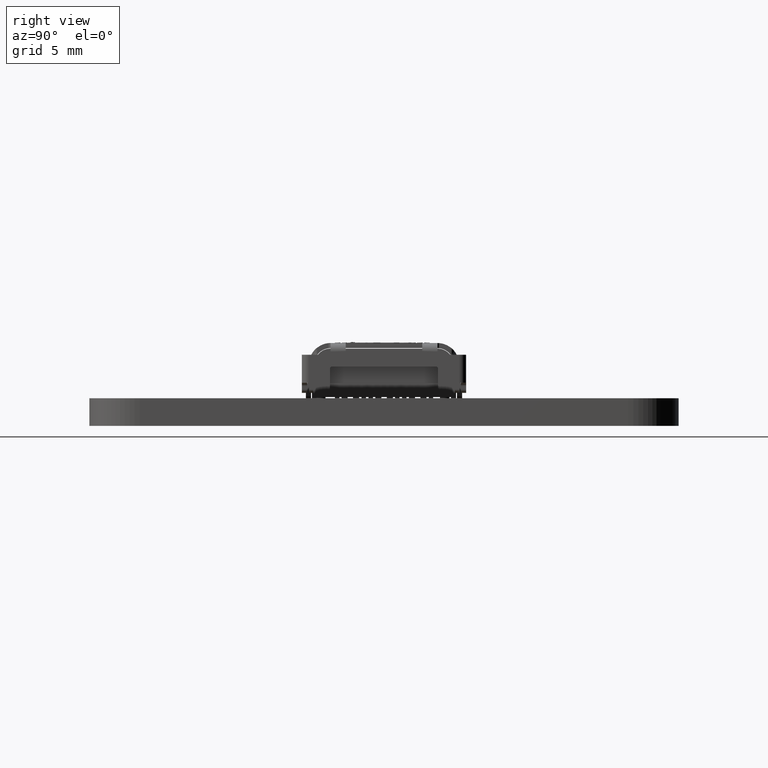
[diagram: clean part render]
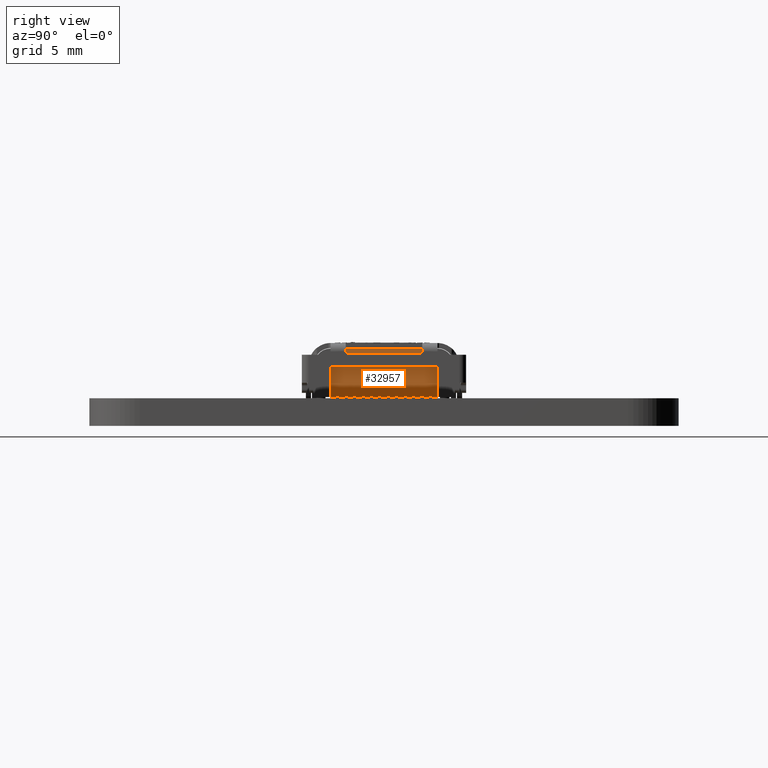
[diagram: same view with one face highlighted and labeled with its STEP entity id]
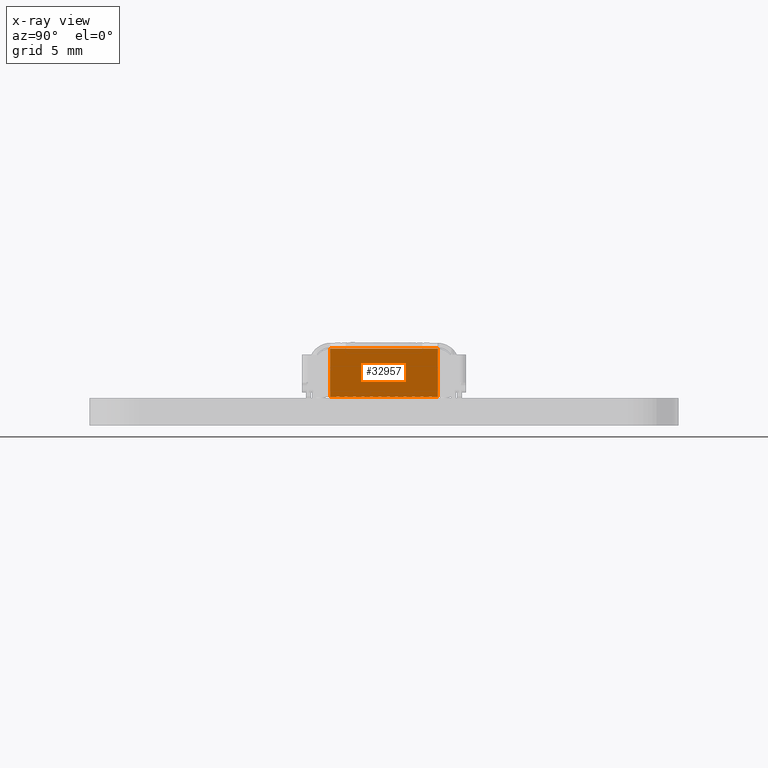
[diagram: x-ray of the same camera — body ghosted, the highlighted face saturated]
A machine part, right view. The second image highlights one B-rep face of the part: STEP entity #32957.
The next image is the same camera in x-ray: the body ghosted, the highlighted face saturated — about 0% of this face is hidden behind the body in this view.
In plain terms, the highlighted planar face has unit normal (-1, 0, -0).
Its self-contained STEP definition (entity closure, byte-faithful):
#32404 = VERTEX_POINT('',#32405);
#32405 = CARTESIAN_POINT('',(2.840011485747,-1.630004854007,
    -2.17000000009));
#32420 = VERTEX_POINT('',#32421);
#32421 = CARTESIAN_POINT('',(2.660011507519,-1.630004854009,
    -2.170000000102));
#32427 = EDGE_CURVE('',#32428,#32420,#32430,.T.);
#32428 = VERTEX_POINT('',#32429);
#32429 = CARTESIAN_POINT('',(2.340011404003,-1.630004854009,
    -2.170000000102));
#32430 = LINE('',#32431,#32432);
#32431 = CARTESIAN_POINT('',(2.340011404003,-1.630004854009,
    -2.170000000102));
#32432 = VECTOR('',#32433,1.);
#32433 = DIRECTION('',(1.,0.E+000,0.E+000));
#32452 = VERTEX_POINT('',#32453);
#32453 = CARTESIAN_POINT('',(2.160011425776,-1.630004854009,
    -2.170000000102));
#32459 = EDGE_CURVE('',#32460,#32452,#32462,.T.);
#32460 = VERTEX_POINT('',#32461);
#32461 = CARTESIAN_POINT('',(1.840011439204,-1.630004854009,
    -2.170000000102));
#32462 = LINE('',#32463,#32464);
#32463 = CARTESIAN_POINT('',(1.840011439204,-1.630004854009,
    -2.170000000102));
#32464 = VECTOR('',#32465,1.);
#32465 = DIRECTION('',(1.,0.E+000,0.E+000));
#32484 = VERTEX_POINT('',#32485);
#32485 = CARTESIAN_POINT('',(1.660011344033,-1.630004854009,
    -2.170000000102));
#32491 = EDGE_CURVE('',#32492,#32484,#32494,.T.);
#32492 = VERTEX_POINT('',#32493);
#32493 = CARTESIAN_POINT('',(1.340011356079,-1.630004854009,
    -2.170000000102));
#32494 = LINE('',#32495,#32496);
#32495 = CARTESIAN_POINT('',(1.340011356079,-1.630004854009,
    -2.170000000102));
#32496 = VECTOR('',#32497,1.);
#32497 = DIRECTION('',(1.,0.E+000,0.E+000));
#32516 = VERTEX_POINT('',#32517);
#32517 = CARTESIAN_POINT('',(1.160011377852,-1.630004854009,
    -2.170000000102));
#32523 = EDGE_CURVE('',#32524,#32516,#32526,.T.);
#32524 = VERTEX_POINT('',#32525);
#32525 = CARTESIAN_POINT('',(0.84001139088,-1.630004854009,
    -2.170000000102));
#32526 = LINE('',#32527,#32528);
#32527 = CARTESIAN_POINT('',(0.84001139088,-1.630004854009,
    -2.170000000102));
#32528 = VECTOR('',#32529,1.);
#32529 = DIRECTION('',(1.,0.E+000,0.E+000));
#32548 = VERTEX_POINT('',#32549);
#32549 = CARTESIAN_POINT('',(0.660011412652,-1.630004854009,
    -2.170000000102));
#32555 = EDGE_CURVE('',#32556,#32548,#32558,.T.);
#32556 = VERTEX_POINT('',#32557);
#32557 = CARTESIAN_POINT('',(0.340011395886,-1.630004854009,
    -2.170000000102));
#32558 = LINE('',#32559,#32560);
#32559 = CARTESIAN_POINT('',(0.340011395886,-1.630004854009,
    -2.170000000102));
#32560 = VECTOR('',#32561,1.);
#32561 = DIRECTION('',(1.,0.E+000,0.E+000));
#32580 = VERTEX_POINT('',#32581);
#32581 = CARTESIAN_POINT('',(0.160011388847,-1.630004854009,
    -2.170000000102));
#32587 = EDGE_CURVE('',#32588,#32580,#32590,.T.);
#32588 = VERTEX_POINT('',#32589);
#32589 = CARTESIAN_POINT('',(-0.15998859844,-1.630004854009,
    -2.170000000102));
#32590 = LINE('',#32591,#32592);
#32591 = CARTESIAN_POINT('',(-0.15998859844,-1.630004854009,
    -2.170000000102));
#32592 = VECTOR('',#32593,1.);
#32593 = DIRECTION('',(1.,0.E+000,0.E+000));
#32612 = VERTEX_POINT('',#32613);
#32613 = CARTESIAN_POINT('',(-0.339988605479,-1.630004854009,
    -2.170000000102));
#32619 = EDGE_CURVE('',#32620,#32612,#32622,.T.);
#32620 = VERTEX_POINT('',#32621);
#32621 = CARTESIAN_POINT('',(-0.659988622245,-1.630004854009,
    -2.170000000102));
#32622 = LINE('',#32623,#32624);
#32623 = CARTESIAN_POINT('',(-0.659988622245,-1.630004854009,
    -2.170000000102));
#32624 = VECTOR('',#32625,1.);
#32625 = DIRECTION('',(1.,0.E+000,0.E+000));
#32644 = VERTEX_POINT('',#32645);
#32645 = CARTESIAN_POINT('',(-0.839988600472,-1.630004854009,
    -2.170000000102));
#32651 = EDGE_CURVE('',#32652,#32644,#32654,.T.);
#32652 = VERTEX_POINT('',#32653);
#32653 = CARTESIAN_POINT('',(-1.159988588111,-1.630004854009,
    -2.170000000102));
#32654 = LINE('',#32655,#32656);
#32655 = CARTESIAN_POINT('',(-1.159988588111,-1.630004854009,
    -2.170000000102));
#32656 = VECTOR('',#32657,1.);
#32657 = DIRECTION('',(1.,0.E+000,0.E+000));
#32676 = VERTEX_POINT('',#32677);
#32677 = CARTESIAN_POINT('',(-1.339988566338,-1.630004854009,
    -2.170000000102));
#32683 = EDGE_CURVE('',#32684,#32676,#32686,.T.);
#32684 = VERTEX_POINT('',#32685);
#32685 = CARTESIAN_POINT('',(-1.659988552244,-1.630004854009,
    -2.170000000102));
#32686 = LINE('',#32687,#32688);
#32687 = CARTESIAN_POINT('',(-1.659988552244,-1.630004854009,
    -2.170000000102));
#32688 = VECTOR('',#32689,1.);
#32689 = DIRECTION('',(1.,0.E+000,0.E+000));
#32708 = VERTEX_POINT('',#32709);
#32709 = CARTESIAN_POINT('',(-1.839988647015,-1.630004854009,
    -2.170000000102));
#32715 = EDGE_CURVE('',#32716,#32708,#32718,.T.);
#32716 = VERTEX_POINT('',#32717);
#32717 = CARTESIAN_POINT('',(-2.159988635369,-1.630004854009,
    -2.170000000102));
#32718 = LINE('',#32719,#32720);
#32719 = CARTESIAN_POINT('',(-2.159988635369,-1.630004854009,
    -2.170000000102));
#32720 = VECTOR('',#32721,1.);
#32721 = DIRECTION('',(1.,0.E+000,0.E+000));
#32740 = VERTEX_POINT('',#32741);
#32741 = CARTESIAN_POINT('',(-2.339988613596,-1.630004854009,
    -2.170000000102));
#32747 = EDGE_CURVE('',#32748,#32740,#32750,.T.);
#32748 = VERTEX_POINT('',#32749);
#32749 = CARTESIAN_POINT('',(-2.659988717112,-1.630004854009,
    -2.170000000102));
#32750 = LINE('',#32751,#32752);
#32751 = CARTESIAN_POINT('',(-2.659988717112,-1.630004854009,
    -2.170000000102));
#32752 = VECTOR('',#32753,1.);
#32753 = DIRECTION('',(1.,0.E+000,0.E+000));
#32772 = VERTEX_POINT('',#32773);
#32773 = CARTESIAN_POINT('',(-2.839988695339,-1.630004854006,
    -2.170000000091));
#32779 = EDGE_CURVE('',#32780,#32772,#32782,.T.);
#32780 = VERTEX_POINT('',#32781);
#32781 = CARTESIAN_POINT('',(-3.200003573524,-1.630004854002,
    -2.170000000108));
#32782 = LINE('',#32783,#32784);
#32783 = CARTESIAN_POINT('',(-3.200003573524,-1.630004854002,
    -2.170000000108));
#32784 = VECTOR('',#32785,1.);
#32785 = DIRECTION('',(1.,-1.203555375921E-011,4.814714915747E-011));
#32868 = VERTEX_POINT('',#32869);
#32869 = CARTESIAN_POINT('',(3.200000435779,-1.630004854002,
    -2.170000000108));
#32875 = EDGE_CURVE('',#32404,#32868,#32876,.T.);
#32876 = LINE('',#32877,#32878);
#32877 = CARTESIAN_POINT('',(2.840011485747,-1.630004854007,
    -2.17000000009));
#32878 = VECTOR('',#32879,1.);
#32879 = DIRECTION('',(1.,1.203888785626E-011,-4.876742645081E-011));
#32914 = EDGE_CURVE('',#32404,#32915,#32917,.T.);
#32915 = VERTEX_POINT('',#32916);
#32916 = CARTESIAN_POINT('',(2.840011485892,-1.610004853818,
    -2.170000000064));
#32917 = LINE('',#32918,#32919);
#32918 = CARTESIAN_POINT('',(2.840011485747,-1.630004854007,
    -2.17000000009));
#32919 = VECTOR('',#32920,1.);
#32920 = DIRECTION('',(7.277289813183E-009,1.,1.328492858738E-009));
#32957 = ADVANCED_FACE('',(#32958),#33270,.F.);
#32958 = FACE_BOUND('',#32959,.F.);
#32959 = EDGE_LOOP('',(#32960,#32961,#32962,#32970,#32979,#32987,#32996,
    #33002,#33003,#33011,#33019,#33025,#33026,#33034,#33042,#33048,
    #33049,#33057,#33065,#33071,#33072,#33080,#33088,#33094,#33095,
    #33103,#33111,#33117,#33118,#33126,#33134,#33140,#33141,#33149,
    #33157,#33163,#33164,#33172,#33180,#33186,#33187,#33195,#33203,
    #33209,#33210,#33218,#33226,#33232,#33233,#33241,#33249,#33255,
    #33256,#33264));
#32960 = ORIENTED_EDGE('',*,*,#32914,.F.);
#32961 = ORIENTED_EDGE('',*,*,#32875,.T.);
#32962 = ORIENTED_EDGE('',*,*,#32963,.F.);
#32963 = EDGE_CURVE('',#32964,#32868,#32966,.T.);
#32964 = VERTEX_POINT('',#32965);
#32965 = CARTESIAN_POINT('',(3.200000418039,1.249673387369,
    -2.170000000299));
#32966 = LINE('',#32967,#32968);
#32967 = CARTESIAN_POINT('',(3.200000418039,1.249673387369,
    -2.170000000299));
#32968 = VECTOR('',#32969,1.);
#32969 = DIRECTION('',(6.160211121278E-009,-1.,6.636050976931E-011));
#32970 = ORIENTED_EDGE('',*,*,#32971,.T.);
#32971 = EDGE_CURVE('',#32964,#32972,#32974,.T.);
#32972 = VERTEX_POINT('',#32973);
#32973 = CARTESIAN_POINT('',(3.175232796425,1.249995138076,
    -2.17000000072));
#32974 = CIRCLE('',#32975,0.970000065);
#32975 = AXIS2_PLACEMENT_3D('',#32976,#32977,#32978);
#32976 = CARTESIAN_POINT('',(3.175000046,0.279995101,-2.17000000072));
#32977 = DIRECTION('',(0.E+000,0.E+000,1.));
#32978 = DIRECTION('',(2.577359004155E-002,0.999667805852,-0.E+000));
#32979 = ORIENTED_EDGE('',*,*,#32980,.F.);
#32980 = EDGE_CURVE('',#32981,#32972,#32983,.T.);
#32981 = VERTEX_POINT('',#32982);
#32982 = CARTESIAN_POINT('',(-3.175242538277,1.249997665936,
    -2.17000000032));
#32983 = LINE('',#32984,#32985);
#32984 = CARTESIAN_POINT('',(-3.175242538277,1.249997665936,
    -2.17000000032));
#32985 = VECTOR('',#32986,1.);
#32986 = DIRECTION('',(1.,-3.8146788824E-007,0.E+000));
#32987 = ORIENTED_EDGE('',*,*,#32988,.T.);
#32988 = EDGE_CURVE('',#32981,#32989,#32991,.T.);
#32989 = VERTEX_POINT('',#32990);
#32990 = CARTESIAN_POINT('',(-3.200009978557,1.249679023928,
    -2.17000000072));
#32991 = CIRCLE('',#32992,0.97);
#32992 = AXIS2_PLACEMENT_3D('',#32993,#32994,#32995);
#32993 = CARTESIAN_POINT('',(-3.175058214,0.28,-2.17000000072));
#32994 = DIRECTION('',(0.E+000,0.E+000,1.));
#32995 = DIRECTION('',(-1.899500525041E-004,0.999999981959,0.E+000));
#32996 = ORIENTED_EDGE('',*,*,#32997,.T.);
#32997 = EDGE_CURVE('',#32989,#32780,#32998,.T.);
#32998 = LINE('',#32999,#33000);
#32999 = CARTESIAN_POINT('',(-3.200010002919,1.249677978284,
    -2.170000000299));
#33000 = VECTOR('',#33001,1.);
#33001 = DIRECTION('',(2.232674922469E-006,-0.999999999998,
    6.62931663976E-011));
#33002 = ORIENTED_EDGE('',*,*,#32779,.T.);
#33003 = ORIENTED_EDGE('',*,*,#33004,.F.);
#33004 = EDGE_CURVE('',#33005,#32772,#33007,.T.);
#33005 = VERTEX_POINT('',#33006);
#33006 = CARTESIAN_POINT('',(-2.839988695245,-1.610004853818,
    -2.170000000064));
#33007 = LINE('',#33008,#33009);
#33008 = CARTESIAN_POINT('',(-2.839988695245,-1.610004853818,
    -2.170000000064));
#33009 = VECTOR('',#33010,1.);
#33010 = DIRECTION('',(-4.722289181841E-009,-1.,-1.338151798976E-009));
#33011 = ORIENTED_EDGE('',*,*,#33012,.T.);
#33012 = EDGE_CURVE('',#33005,#33013,#33015,.T.);
#33013 = VERTEX_POINT('',#33014);
#33014 = CARTESIAN_POINT('',(-2.659988717146,-1.610004853818,
    -2.170000000064));
#33015 = LINE('',#33016,#33017);
#33016 = CARTESIAN_POINT('',(-2.839988695245,-1.610004853818,
    -2.170000000064));
#33017 = VECTOR('',#33018,1.);
#33018 = DIRECTION('',(1.,6.513309203635E-013,0.E+000));
#33019 = ORIENTED_EDGE('',*,*,#33020,.T.);
#33020 = EDGE_CURVE('',#33013,#32748,#33021,.T.);
#33021 = LINE('',#33022,#33023);
#33022 = CARTESIAN_POINT('',(-2.659988717146,-1.610004853818,
    -2.170000000064));
#33023 = VECTOR('',#33024,1.);
#33024 = DIRECTION('',(1.716649028765E-009,-1.,-1.900013461764E-009));
#33025 = ORIENTED_EDGE('',*,*,#32747,.T.);
#33026 = ORIENTED_EDGE('',*,*,#33027,.F.);
#33027 = EDGE_CURVE('',#33028,#32740,#33030,.T.);
#33028 = VERTEX_POINT('',#33029);
#33029 = CARTESIAN_POINT('',(-2.339988613208,-1.610004853818,
    -2.170000000064));
#33030 = LINE('',#33031,#33032);
#33031 = CARTESIAN_POINT('',(-2.339988613208,-1.610004853818,
    -2.170000000064));
#33032 = VECTOR('',#33033,1.);
#33033 = DIRECTION('',(-1.94264824596E-008,-1.,-1.899991257315E-009));
#33034 = ORIENTED_EDGE('',*,*,#33035,.T.);
#33035 = EDGE_CURVE('',#33028,#33036,#33038,.T.);
#33036 = VERTEX_POINT('',#33037);
#33037 = CARTESIAN_POINT('',(-2.159988635109,-1.610004853818,
    -2.170000000064));
#33038 = LINE('',#33039,#33040);
#33039 = CARTESIAN_POINT('',(-2.339988613208,-1.610004853818,
    -2.170000000064));
#33040 = VECTOR('',#33041,1.);
#33041 = DIRECTION('',(1.,6.513309203626E-013,0.E+000));
#33042 = ORIENTED_EDGE('',*,*,#33043,.T.);
#33043 = EDGE_CURVE('',#33036,#32716,#33044,.T.);
#33044 = LINE('',#33045,#33046);
#33045 = CARTESIAN_POINT('',(-2.159988635109,-1.610004853818,
    -2.170000000064));
#33046 = VECTOR('',#33047,1.);
#33047 = DIRECTION('',(-1.300000095165E-008,-1.,-1.900013461764E-009));
#33048 = ORIENTED_EDGE('',*,*,#32715,.T.);
#33049 = ORIENTED_EDGE('',*,*,#33050,.F.);
#33050 = EDGE_CURVE('',#33051,#32708,#33053,.T.);
#33051 = VERTEX_POINT('',#33052);
#33052 = CARTESIAN_POINT('',(-1.839988647358,-1.610004853818,
    -2.170000000064));
#33053 = LINE('',#33054,#33055);
#33054 = CARTESIAN_POINT('',(-1.839988647358,-1.610004853818,
    -2.170000000064));
#33055 = VECTOR('',#33056,1.);
#33056 = DIRECTION('',(1.713598135933E-008,-1.,-1.899991257315E-009));
#33057 = ORIENTED_EDGE('',*,*,#33058,.T.);
#33058 = EDGE_CURVE('',#33051,#33059,#33061,.T.);
#33059 = VERTEX_POINT('',#33060);
#33060 = CARTESIAN_POINT('',(-1.659988552611,-1.610004853818,
    -2.170000000064));
#33061 = LINE('',#33062,#33063);
#33062 = CARTESIAN_POINT('',(-1.839988647358,-1.610004853818,
    -2.170000000064));
#33063 = VECTOR('',#33064,1.);
#33064 = DIRECTION('',(1.,6.513304982722E-013,0.E+000));
#33065 = ORIENTED_EDGE('',*,*,#33066,.T.);
#33066 = EDGE_CURVE('',#33059,#32684,#33067,.T.);
#33067 = LINE('',#33068,#33069);
#33068 = CARTESIAN_POINT('',(-1.659988552611,-1.610004853818,
    -2.170000000064));
#33069 = VECTOR('',#33070,1.);
#33070 = DIRECTION('',(1.834998802062E-008,-1.,-1.900013461764E-009));
#33071 = ORIENTED_EDGE('',*,*,#32683,.T.);
#33072 = ORIENTED_EDGE('',*,*,#33073,.F.);
#33073 = EDGE_CURVE('',#33074,#32676,#33076,.T.);
#33074 = VERTEX_POINT('',#33075);
#33075 = CARTESIAN_POINT('',(-1.339988566387,-1.610004853818,
    -2.170000000064));
#33076 = LINE('',#33077,#33078);
#33077 = CARTESIAN_POINT('',(-1.339988566387,-1.610004853818,
    -2.170000000064));
#33078 = VECTOR('',#33079,1.);
#33079 = DIRECTION('',(2.426259170432E-009,-1.,-1.899991257315E-009));
#33080 = ORIENTED_EDGE('',*,*,#33081,.T.);
#33081 = EDGE_CURVE('',#33074,#33082,#33084,.T.);
#33082 = VERTEX_POINT('',#33083);
#33083 = CARTESIAN_POINT('',(-1.159988588288,-1.610004853818,
    -2.170000000064));
#33084 = LINE('',#33085,#33086);
#33085 = CARTESIAN_POINT('',(-1.339988566387,-1.610004853818,
    -2.170000000064));
#33086 = VECTOR('',#33087,1.);
#33087 = DIRECTION('',(1.,6.513309203636E-013,0.E+000));
#33088 = ORIENTED_EDGE('',*,*,#33089,.T.);
#33089 = EDGE_CURVE('',#33082,#32652,#33090,.T.);
#33090 = LINE('',#33091,#33092);
#33091 = CARTESIAN_POINT('',(-1.159988588288,-1.610004853818,
    -2.170000000064));
#33092 = VECTOR('',#33093,1.);
#33093 = DIRECTION('',(8.866651772621E-009,-1.,-1.900013461764E-009));
#33094 = ORIENTED_EDGE('',*,*,#32651,.T.);
#33095 = ORIENTED_EDGE('',*,*,#33096,.F.);
#33096 = EDGE_CURVE('',#33097,#32644,#33099,.T.);
#33097 = VERTEX_POINT('',#33098);
#33098 = CARTESIAN_POINT('',(-0.83998860022,-1.610004853818,
    -2.170000000064));
#33099 = LINE('',#33100,#33101);
#33100 = CARTESIAN_POINT('',(-0.83998860022,-1.610004853818,
    -2.170000000064));
#33101 = VECTOR('',#33102,1.);
#33102 = DIRECTION('',(-1.26185283241E-008,-1.,-1.899991257315E-009));
#33103 = ORIENTED_EDGE('',*,*,#33104,.T.);
#33104 = EDGE_CURVE('',#33097,#33105,#33107,.T.);
#33105 = VERTEX_POINT('',#33106);
#33106 = CARTESIAN_POINT('',(-0.659988622121,-1.610004853818,
    -2.170000000064));
#33107 = LINE('',#33108,#33109);
#33108 = CARTESIAN_POINT('',(-0.83998860022,-1.610004853818,
    -2.170000000064));
#33109 = VECTOR('',#33110,1.);
#33110 = DIRECTION('',(1.,6.513309203633E-013,0.E+000));
#33111 = ORIENTED_EDGE('',*,*,#33112,.T.);
#33112 = EDGE_CURVE('',#33105,#32620,#33113,.T.);
#33113 = LINE('',#33114,#33115);
#33114 = CARTESIAN_POINT('',(-0.659988622121,-1.610004853818,
    -2.170000000064));
#33115 = VECTOR('',#33116,1.);
#33116 = DIRECTION('',(-6.183331565533E-009,-1.,-1.900013461764E-009));
#33117 = ORIENTED_EDGE('',*,*,#32619,.T.);
#33118 = ORIENTED_EDGE('',*,*,#33119,.F.);
#33119 = EDGE_CURVE('',#33120,#32612,#33122,.T.);
#33120 = VERTEX_POINT('',#33121);
#33121 = CARTESIAN_POINT('',(-0.339988605388,-1.610004853818,
    -2.170000000064));
#33122 = LINE('',#33123,#33124);
#33123 = CARTESIAN_POINT('',(-0.339988605388,-1.610004853818,
    -2.170000000064));
#33124 = VECTOR('',#33125,1.);
#33125 = DIRECTION('',(-4.552183586662E-009,-1.,-1.899991257315E-009));
#33126 = ORIENTED_EDGE('',*,*,#33127,.T.);
#33127 = EDGE_CURVE('',#33120,#33128,#33130,.T.);
#33128 = VERTEX_POINT('',#33129);
#33129 = CARTESIAN_POINT('',(-0.159988598019,-1.610004853818,
    -2.170000000064));
#33130 = LINE('',#33131,#33132);
#33131 = CARTESIAN_POINT('',(-0.339988605388,-1.610004853818,
    -2.170000000064));
#33132 = VECTOR('',#33133,1.);
#33133 = DIRECTION('',(1.,6.513308144477E-013,0.E+000));
#33134 = ORIENTED_EDGE('',*,*,#33135,.T.);
#33135 = EDGE_CURVE('',#33128,#32588,#33136,.T.);
#33136 = LINE('',#33137,#33138);
#33137 = CARTESIAN_POINT('',(-0.159988598019,-1.610004853818,
    -2.170000000064));
#33138 = VECTOR('',#33139,1.);
#33139 = DIRECTION('',(-2.106166609904E-008,-1.,-1.900013461764E-009));
#33140 = ORIENTED_EDGE('',*,*,#32587,.T.);
#33141 = ORIENTED_EDGE('',*,*,#33142,.F.);
#33142 = EDGE_CURVE('',#33143,#32580,#33145,.T.);
#33143 = VERTEX_POINT('',#33144);
#33144 = CARTESIAN_POINT('',(0.160011388666,-1.610004853818,
    -2.170000000064));
#33145 = LINE('',#33146,#33147);
#33146 = CARTESIAN_POINT('',(0.160011388666,-1.610004853818,
    -2.170000000064));
#33147 = VECTOR('',#33148,1.);
#33148 = DIRECTION('',(9.069715725278E-009,-1.,-1.899991257315E-009));
#33149 = ORIENTED_EDGE('',*,*,#33150,.T.);
#33150 = EDGE_CURVE('',#33143,#33151,#33153,.T.);
#33151 = VERTEX_POINT('',#33152);
#33152 = CARTESIAN_POINT('',(0.340011396035,-1.610004853818,
    -2.170000000064));
#33153 = LINE('',#33154,#33155);
#33154 = CARTESIAN_POINT('',(0.160011388666,-1.610004853818,
    -2.170000000064));
#33155 = VECTOR('',#33156,1.);
#33156 = DIRECTION('',(1.,6.513308144477E-013,0.E+000));
#33157 = ORIENTED_EDGE('',*,*,#33158,.T.);
#33158 = EDGE_CURVE('',#33151,#32556,#33159,.T.);
#33159 = LINE('',#33160,#33161);
#33160 = CARTESIAN_POINT('',(0.340011396035,-1.610004853818,
    -2.170000000064));
#33161 = VECTOR('',#33162,1.);
#33162 = DIRECTION('',(-7.438335987273E-009,-1.,-1.900013461764E-009));
#33163 = ORIENTED_EDGE('',*,*,#32555,.T.);
#33164 = ORIENTED_EDGE('',*,*,#33165,.F.);
#33165 = EDGE_CURVE('',#33166,#32548,#33168,.T.);
#33166 = VERTEX_POINT('',#33167);
#33167 = CARTESIAN_POINT('',(0.660011412768,-1.610004853818,
    -2.170000000064));
#33168 = LINE('',#33169,#33170);
#33169 = CARTESIAN_POINT('',(0.660011412768,-1.610004853818,
    -2.170000000064));
#33170 = VECTOR('',#33171,1.);
#33171 = DIRECTION('',(-5.808931058543E-009,-1.,-1.899991257315E-009));
#33172 = ORIENTED_EDGE('',*,*,#33173,.T.);
#33173 = EDGE_CURVE('',#33166,#33174,#33176,.T.);
#33174 = VERTEX_POINT('',#33175);
#33175 = CARTESIAN_POINT('',(0.840011390867,-1.610004853818,
    -2.170000000064));
#33176 = LINE('',#33177,#33178);
#33177 = CARTESIAN_POINT('',(0.660011412768,-1.610004853818,
    -2.170000000064));
#33178 = VECTOR('',#33179,1.);
#33179 = DIRECTION('',(1.,6.513309203633E-013,0.E+000));
#33180 = ORIENTED_EDGE('',*,*,#33181,.T.);
#33181 = EDGE_CURVE('',#33174,#32524,#33182,.T.);
#33182 = LINE('',#33183,#33184);
#33183 = CARTESIAN_POINT('',(0.840011390867,-1.610004853818,
    -2.170000000064));
#33184 = VECTOR('',#33185,1.);
#33185 = DIRECTION('',(6.266709313887E-010,-1.,-1.900013461764E-009));
#33186 = ORIENTED_EDGE('',*,*,#32523,.T.);
#33187 = ORIENTED_EDGE('',*,*,#33188,.F.);
#33188 = EDGE_CURVE('',#33189,#32516,#33191,.T.);
#33189 = VERTEX_POINT('',#33190);
#33190 = CARTESIAN_POINT('',(1.160011378157,-1.610004853818,
    -2.170000000064));
#33191 = LINE('',#33192,#33193);
#33192 = CARTESIAN_POINT('',(1.160011378157,-1.610004853818,
    -2.170000000064));
#33193 = VECTOR('',#33194,1.);
#33194 = DIRECTION('',(-1.529482081953E-008,-1.,-1.899991257315E-009));
#33195 = ORIENTED_EDGE('',*,*,#33196,.T.);
#33196 = EDGE_CURVE('',#33189,#33197,#33199,.T.);
#33197 = VERTEX_POINT('',#33198);
#33198 = CARTESIAN_POINT('',(1.340011356256,-1.610004853818,
    -2.170000000064));
#33199 = LINE('',#33200,#33201);
#33200 = CARTESIAN_POINT('',(1.160011378157,-1.610004853818,
    -2.170000000064));
#33201 = VECTOR('',#33202,1.);
#33202 = DIRECTION('',(1.,6.513309203627E-013,0.E+000));
#33203 = ORIENTED_EDGE('',*,*,#33204,.T.);
#33204 = EDGE_CURVE('',#33197,#32492,#33205,.T.);
#33205 = LINE('',#33206,#33207);
#33206 = CARTESIAN_POINT('',(1.340011356256,-1.610004853818,
    -2.170000000064));
#33207 = VECTOR('',#33208,1.);
#33208 = DIRECTION('',(-8.866651772621E-009,-1.,-1.900013461764E-009));
#33209 = ORIENTED_EDGE('',*,*,#32491,.T.);
#33210 = ORIENTED_EDGE('',*,*,#33211,.F.);
#33211 = EDGE_CURVE('',#33212,#32484,#33214,.T.);
#33212 = VERTEX_POINT('',#33213);
#33213 = CARTESIAN_POINT('',(1.660011343719,-1.610004853818,
    -2.170000000064));
#33214 = LINE('',#33215,#33216);
#33215 = CARTESIAN_POINT('',(1.660011343719,-1.610004853818,
    -2.170000000064));
#33216 = VECTOR('',#33217,1.);
#33217 = DIRECTION('',(1.572314485835E-008,-1.,-1.899991257315E-009));
#33218 = ORIENTED_EDGE('',*,*,#33219,.T.);
#33219 = EDGE_CURVE('',#33212,#33220,#33222,.T.);
#33220 = VERTEX_POINT('',#33221);
#33221 = CARTESIAN_POINT('',(1.840011438754,-1.610004853818,
    -2.170000000064));
#33222 = LINE('',#33223,#33224);
#33223 = CARTESIAN_POINT('',(1.660011343719,-1.610004853818,
    -2.170000000064));
#33224 = VECTOR('',#33225,1.);
#33225 = DIRECTION('',(1.,6.513304972265E-013,0.E+000));
#33226 = ORIENTED_EDGE('',*,*,#33227,.T.);
#33227 = EDGE_CURVE('',#33220,#32460,#33228,.T.);
#33228 = LINE('',#33229,#33230);
#33229 = CARTESIAN_POINT('',(1.840011438754,-1.610004853818,
    -2.170000000064));
#33230 = VECTOR('',#33231,1.);
#33231 = DIRECTION('',(2.248332609742E-008,-1.,-1.900013461764E-009));
#33232 = ORIENTED_EDGE('',*,*,#32459,.T.);
#33233 = ORIENTED_EDGE('',*,*,#33234,.F.);
#33234 = EDGE_CURVE('',#33235,#32452,#33237,.T.);
#33235 = VERTEX_POINT('',#33236);
#33236 = CARTESIAN_POINT('',(2.160011425756,-1.610004853818,
    -2.170000000064));
#33237 = LINE('',#33238,#33239);
#33238 = CARTESIAN_POINT('',(2.160011425756,-1.610004853818,
    -2.170000000064));
#33239 = VECTOR('',#33240,1.);
#33240 = DIRECTION('',(1.002331541539E-009,-1.,-1.899991257315E-009));
#33241 = ORIENTED_EDGE('',*,*,#33242,.T.);
#33242 = EDGE_CURVE('',#33235,#33243,#33245,.T.);
#33243 = VERTEX_POINT('',#33244);
#33244 = CARTESIAN_POINT('',(2.340011403855,-1.610004853818,
    -2.170000000064));
#33245 = LINE('',#33246,#33247);
#33246 = CARTESIAN_POINT('',(2.160011425756,-1.610004853818,
    -2.170000000064));
#33247 = VECTOR('',#33248,1.);
#33248 = DIRECTION('',(1.,6.51330920363E-013,0.E+000));
#33249 = ORIENTED_EDGE('',*,*,#33250,.T.);
#33250 = EDGE_CURVE('',#33243,#32428,#33251,.T.);
#33251 = LINE('',#33252,#33253);
#33252 = CARTESIAN_POINT('',(2.340011403855,-1.610004853818,
    -2.170000000064));
#33253 = VECTOR('',#33254,1.);
#33254 = DIRECTION('',(7.433320554808E-009,-1.,-1.900013461764E-009));
#33255 = ORIENTED_EDGE('',*,*,#32427,.T.);
#33256 = ORIENTED_EDGE('',*,*,#33257,.F.);
#33257 = EDGE_CURVE('',#33258,#32420,#33260,.T.);
#33258 = VERTEX_POINT('',#33259);
#33259 = CARTESIAN_POINT('',(2.660011507793,-1.610004853818,
    -2.170000000064));
#33260 = LINE('',#33261,#33262);
#33261 = CARTESIAN_POINT('',(2.660011507793,-1.610004853818,
    -2.170000000064));
#33262 = VECTOR('',#33263,1.);
#33263 = DIRECTION('',(-1.371851508196E-008,-1.,-1.899991257315E-009));
#33264 = ORIENTED_EDGE('',*,*,#33265,.T.);
#33265 = EDGE_CURVE('',#33258,#32915,#33266,.T.);
#33266 = LINE('',#33267,#33268);
#33267 = CARTESIAN_POINT('',(2.660011507793,-1.610004853818,
    -2.170000000064));
#33268 = VECTOR('',#33269,1.);
#33269 = DIRECTION('',(1.,6.513309203626E-013,1.236048451143E-012));
#33270 = PLANE('',#33271);
#33271 = AXIS2_PLACEMENT_3D('',#33272,#33273,#33274);
#33272 = CARTESIAN_POINT('',(3.800000003551E-008,-0.1900048905,-2.17));
#33273 = DIRECTION('',(0.E+000,0.E+000,1.));
#33274 = DIRECTION('',(-1.,0.E+000,0.E+000));